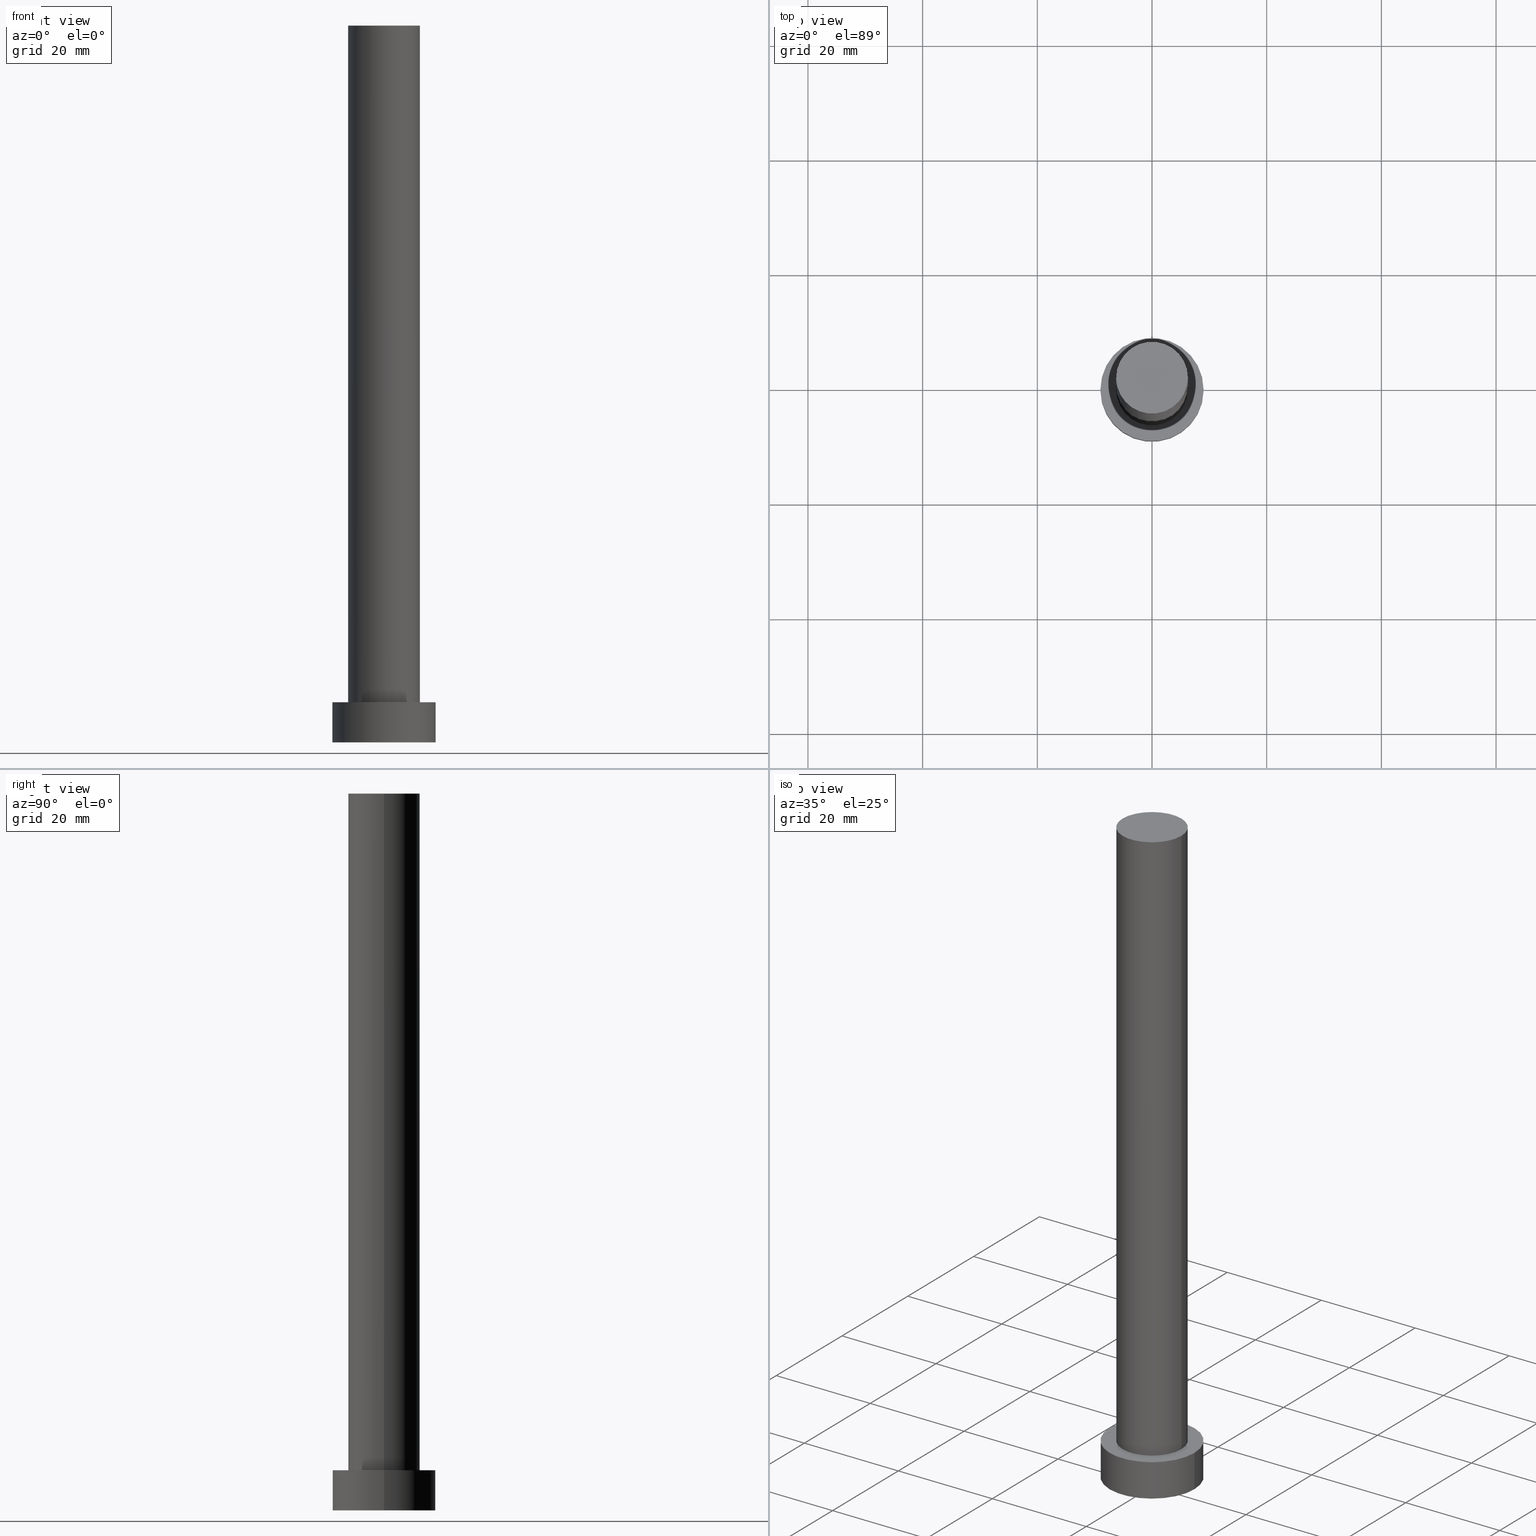
[diagram: canonical four-view strip — front | top / right | iso, engineering-drawing reading convention]
A machine part, canonical four-view strip (front | top / right | iso — engineering-drawing reading convention). The complete STEP part file that produces these views, byte-faithful:
ISO-10303-21;
HEADER;
FILE_DESCRIPTION (( 'STEP AP203' ),
    '1' );
FILE_NAME ('b05c.STEP',
    '2023-02-13T11:38:30',
    ( '' ),
    ( '' ),
    'SwSTEP 2.0',
    'SolidWorks 2019',
    '' );
FILE_SCHEMA (( 'CONFIG_CONTROL_DESIGN' ));
ENDSEC;

DATA;
#1 = PERSON_AND_ORGANIZATION ( #138, #77 ) ;
#2 = CYLINDRICAL_SURFACE ( 'NONE', #68, 6.250000000000000000 ) ;
#3 = DIRECTION ( 'NONE',  ( -0.000000000000000000, -0.000000000000000000, -1.000000000000000000 ) ) ;
#4 = ORIENTED_EDGE ( 'NONE', *, *, #132, .F. ) ;
#5 = EDGE_LOOP ( 'NONE', ( #204, #188, #47, #203 ) ) ;
#6 = ORIENTED_EDGE ( 'NONE', *, *, #98, .T. ) ;
#7 = VERTEX_POINT ( 'NONE', #169 ) ;
#8 = SECURITY_CLASSIFICATION_LEVEL ( 'unclassified' ) ;
#9 = ORIENTED_EDGE ( 'NONE', *, *, #155, .F. ) ;
#10 = DIRECTION ( 'NONE',  ( 0.000000000000000000, 0.000000000000000000, 1.000000000000000000 ) ) ;
#11 = MANIFOLD_SOLID_BREP ( 'P�idat vysunut�m3', #159 ) ;
#12 = FACE_OUTER_BOUND ( 'NONE', #5, .T. ) ;
#13 = DIRECTION ( 'NONE',  ( 1.000000000000000000, 0.000000000000000000, 0.000000000000000000 ) ) ;
#14 = CIRCLE ( 'NONE', #24, 6.250000000000000000 ) ;
#15 = APPROVAL ( #201, 'NEUR�EN�' ) ;
#16 = CARTESIAN_POINT ( 'NONE',  ( 0.000000000000000000, 0.000000000000000000, 0.000000000000000000 ) ) ;
#17 = DIRECTION ( 'NONE',  ( 1.000000000000000000, 0.000000000000000000, 0.000000000000000000 ) ) ;
#18 = UNCERTAINTY_MEASURE_WITH_UNIT (LENGTH_MEASURE( 1.000000000000000082E-05 ), #219, 'distance_accuracy_value', 'NONE');
#19 =( NAMED_UNIT ( * ) SI_UNIT ( $, .STERADIAN. ) SOLID_ANGLE_UNIT ( ) );
#20 = CALENDAR_DATE ( 2023, 13, 2 ) ;
#21 = PLANE ( 'NONE',  #133 ) ;
#22 = CC_DESIGN_APPROVAL ( #15, ( #195 ) ) ;
#23 = VERTEX_POINT ( 'NONE', #27 ) ;
#24 = AXIS2_PLACEMENT_3D ( 'NONE', #110, #92, #74 ) ;
#25 = APPROVAL_PERSON_ORGANIZATION ( #45, #221, #66 ) ;
#26 = EDGE_LOOP ( 'NONE', ( #145, #44 ) ) ;
#27 = CARTESIAN_POINT ( 'NONE',  ( -6.250000000000000000, 0.000000000000000000, 7.000000000000000000 ) ) ;
#28 = AXIS2_PLACEMENT_3D ( 'NONE', #173, #254, #234 ) ;
#29 = CARTESIAN_POINT ( 'NONE',  ( 9.000000000000000000, 1.102182119232617714E-15, 7.000000000000000000 ) ) ;
#30 = DIRECTION ( 'NONE',  ( -0.000000000000000000, -0.000000000000000000, -1.000000000000000000 ) ) ;
#31 = DIRECTION ( 'NONE',  ( 1.000000000000000000, 0.000000000000000000, -0.000000000000000000 ) ) ;
#32 = LINE ( 'NONE', #189, #50 ) ;
#33 = AXIS2_PLACEMENT_3D ( 'NONE', #88, #170, #70 ) ;
#34 = FACE_BOUND ( 'NONE', #225, .T. ) ;
#35 = ADVANCED_FACE ( 'NONE', ( #105 ), #149, .T. ) ;
#36 = DIRECTION ( 'NONE',  ( -1.000000000000000000, 0.000000000000000000, 0.000000000000000000 ) ) ;
#37 = DATE_AND_TIME ( #57, #212 ) ;
#38 = AXIS2_PLACEMENT_3D ( 'NONE', #171, #249, #215 ) ;
#39 = CC_DESIGN_APPROVAL ( #221, ( #119 ) ) ;
#40 = CALENDAR_DATE ( 2023, 13, 2 ) ;
#41 = AXIS2_PLACEMENT_3D ( 'NONE', #199, #140, #80 ) ;
#42 = EDGE_CURVE ( 'NONE', #7, #122, #32, .T. ) ;
#43 = CALENDAR_DATE ( 2023, 13, 2 ) ;
#44 = ORIENTED_EDGE ( 'NONE', *, *, #111, .T. ) ;
#45 = PERSON_AND_ORGANIZATION ( #138, #77 ) ;
#46 = VERTEX_POINT ( 'NONE', #73 ) ;
#47 = ORIENTED_EDGE ( 'NONE', *, *, #202, .T. ) ;
#48 = DIRECTION ( 'NONE',  ( -0.000000000000000000, -0.000000000000000000, -1.000000000000000000 ) ) ;
#49 = AXIS2_PLACEMENT_3D ( 'NONE', #251, #190, #148 ) ;
#50 = VECTOR ( 'NONE', #89, 1000.000000000000000 ) ;
#51 = DIRECTION ( 'NONE',  ( 1.000000000000000000, 0.000000000000000000, 0.000000000000000000 ) ) ;
#52 = EDGE_CURVE ( 'NONE', #147, #7, #139, .T. ) ;
#53 = LINE ( 'NONE', #75, #125 ) ;
#54 = CARTESIAN_POINT ( 'NONE',  ( -6.250000000000000000, 0.000000000000000000, 125.0000000000000000 ) ) ;
#55 = PERSON_AND_ORGANIZATION ( #138, #77 ) ;
#56 = ADVANCED_FACE ( 'NONE', ( #150 ), #211, .F. ) ;
#57 = CALENDAR_DATE ( 2023, 13, 2 ) ;
#58 = APPLICATION_PROTOCOL_DEFINITION ( 'international standard', 'config_control_design', 1994, #96 ) ;
#59 = CC_DESIGN_DATE_AND_TIME_ASSIGNMENT ( #120, #157, ( #117 ) ) ;
#60 = FACE_OUTER_BOUND ( 'NONE', #26, .T. ) ;
#61 = COORDINATED_UNIVERSAL_TIME_OFFSET ( 1, 0, .AHEAD. ) ;
#62 = EDGE_CURVE ( 'NONE', #184, #163, #206, .T. ) ;
#63 = AXIS2_PLACEMENT_3D ( 'NONE', #127, #174, #13 ) ;
#64 = LOCAL_TIME ( 12, 38, 30.00000000000000000, #156 ) ;
#65 = CALENDAR_DATE ( 2023, 13, 2 ) ;
#66 = APPROVAL_ROLE ( '' ) ;
#67 = ORIENTED_EDGE ( 'NONE', *, *, #207, .F. ) ;
#68 = AXIS2_PLACEMENT_3D ( 'NONE', #79, #3, #36 ) ;
#69 = EDGE_LOOP ( 'NONE', ( #228, #67 ) ) ;
#70 = DIRECTION ( 'NONE',  ( -1.000000000000000000, 0.000000000000000000, 0.000000000000000000 ) ) ;
#71 = CARTESIAN_POINT ( 'NONE',  ( 9.000000000000000000, 1.102182119232617714E-15, 0.000000000000000000 ) ) ;
#72 = CIRCLE ( 'NONE', #200, 9.000000000000000000 ) ;
#73 = CARTESIAN_POINT ( 'NONE',  ( 9.000000000000000000, 1.102182119232617714E-15, 7.000000000000000000 ) ) ;
#74 = DIRECTION ( 'NONE',  ( 1.000000000000000000, 0.000000000000000000, 0.000000000000000000 ) ) ;
#75 = CARTESIAN_POINT ( 'NONE',  ( -9.000000000000000000, 0.000000000000000000, 7.000000000000000000 ) ) ;
#76 =( NAMED_UNIT ( * ) PLANE_ANGLE_UNIT ( ) SI_UNIT ( $, .RADIAN. ) );
#77 = ORGANIZATION ( 'NEUR�EN�', 'NEUR�EN�', '' ) ;
#78 = MECHANICAL_CONTEXT ( 'NONE', #96, 'mechanical' ) ;
#79 = CARTESIAN_POINT ( 'NONE',  ( 0.000000000000000000, 0.000000000000000000, 125.0000000000000000 ) ) ;
#80 = DIRECTION ( 'NONE',  ( 1.000000000000000000, 0.000000000000000000, -0.000000000000000000 ) ) ;
#81 = COORDINATED_UNIVERSAL_TIME_OFFSET ( 1, 0, .AHEAD. ) ;
#82 = ORIENTED_EDGE ( 'NONE', *, *, #52, .F. ) ;
#83 = DATE_TIME_ROLE ( 'classification_date' ) ;
#84 = ORIENTED_EDGE ( 'NONE', *, *, #132, .T. ) ;
#85 = PERSON_AND_ORGANIZATION ( #138, #77 ) ;
#86 = EDGE_LOOP ( 'NONE', ( #121, #84 ) ) ;
#87 = AXIS2_PLACEMENT_3D ( 'NONE', #191, #90, #236 ) ;
#88 = CARTESIAN_POINT ( 'NONE',  ( 0.000000000000000000, 0.000000000000000000, 7.000000000000000000 ) ) ;
#89 = DIRECTION ( 'NONE',  ( -0.000000000000000000, -0.000000000000000000, -1.000000000000000000 ) ) ;
#90 = DIRECTION ( 'NONE',  ( 0.000000000000000000, 0.000000000000000000, 1.000000000000000000 ) ) ;
#91 = CIRCLE ( 'NONE', #63, 9.000000000000000000 ) ;
#92 = DIRECTION ( 'NONE',  ( 0.000000000000000000, 0.000000000000000000, 1.000000000000000000 ) ) ;
#93 = FACE_OUTER_BOUND ( 'NONE', #128, .T. ) ;
#94 = CIRCLE ( 'NONE', #49, 6.250000000000000000 ) ;
#95 = COORDINATED_UNIVERSAL_TIME_OFFSET ( 1, 0, .AHEAD. ) ;
#96 = APPLICATION_CONTEXT ( 'configuration controlled 3d designs of mechanical parts and assemblies' ) ;
#97 = PERSON_AND_ORGANIZATION_ROLE ( 'creator' ) ;
#98 = EDGE_CURVE ( 'NONE', #46, #163, #230, .T. ) ;
#99 = EDGE_LOOP ( 'NONE', ( #4, #124, #146, #9 ) ) ;
#100 = DATE_AND_TIME ( #20, #248 ) ;
#101 = APPROVAL_PERSON_ORGANIZATION ( #137, #15, #239 ) ;
#102 = ORIENTED_EDGE ( 'NONE', *, *, #151, .F. ) ;
#103 = CC_DESIGN_PERSON_AND_ORGANIZATION_ASSIGNMENT ( #1, #97, ( #117 ) ) ;
#104 = ORIENTED_EDGE ( 'NONE', *, *, #207, .T. ) ;
#105 = FACE_OUTER_BOUND ( 'NONE', #99, .T. ) ;
#106 = LOCAL_TIME ( 12, 38, 30.00000000000000000, #81 ) ;
#107 = ADVANCED_FACE ( 'NONE', ( #93 ), #129, .T. ) ;
#108 = DIRECTION ( 'NONE',  ( -1.000000000000000000, 0.000000000000000000, 0.000000000000000000 ) ) ;
#109 = CARTESIAN_POINT ( 'NONE',  ( -6.250000000000000000, 0.000000000000000000, 125.0000000000000000 ) ) ;
#110 = CARTESIAN_POINT ( 'NONE',  ( 0.000000000000000000, 0.000000000000000000, 125.0000000000000000 ) ) ;
#111 = EDGE_CURVE ( 'NONE', #46, #247, #91, .T. ) ;
#112 = APPLICATION_CONTEXT ( 'configuration controlled 3d designs of mechanical parts and assemblies' ) ;
#113 = AXIS2_PLACEMENT_3D ( 'NONE', #16, #238, #141 ) ;
#114 = LOCAL_TIME ( 12, 38, 30.00000000000000000, #61 ) ;
#115 = DIRECTION ( 'NONE',  ( 0.000000000000000000, 0.000000000000000000, 1.000000000000000000 ) ) ;
#116 = CARTESIAN_POINT ( 'NONE',  ( 0.000000000000000000, 0.000000000000000000, 7.000000000000000000 ) ) ;
#117 = PRODUCT_DEFINITION ( 'NEZN�M�', '', #195, #177 ) ;
#118 = DIRECTION ( 'NONE',  ( 1.000000000000000000, 0.000000000000000000, -0.000000000000000000 ) ) ;
#119 = SECURITY_CLASSIFICATION ( '', '', #8 ) ;
#120 = DATE_AND_TIME ( #40, #64 ) ;
#121 = ORIENTED_EDGE ( 'NONE', *, *, #52, .T. ) ;
#122 = VERTEX_POINT ( 'NONE', #152 ) ;
#123 = EDGE_CURVE ( 'NONE', #23, #122, #94, .T. ) ;
#124 = ORIENTED_EDGE ( 'NONE', *, *, #42, .T. ) ;
#125 = VECTOR ( 'NONE', #30, 1000.000000000000000 ) ;
#126 = SHAPE_DEFINITION_REPRESENTATION ( #167, #185 ) ;
#127 = CARTESIAN_POINT ( 'NONE',  ( 0.000000000000000000, 0.000000000000000000, 7.000000000000000000 ) ) ;
#128 = EDGE_LOOP ( 'NONE', ( #166, #6, #104, #229 ) ) ;
#129 = CYLINDRICAL_SURFACE ( 'NONE', #33, 9.000000000000000000 ) ;
#130 = DIRECTION ( 'NONE',  ( 1.000000000000000000, 0.000000000000000000, 0.000000000000000000 ) ) ;
#131 = CARTESIAN_POINT ( 'NONE',  ( 0.000000000000000000, 0.000000000000000000, 7.000000000000000000 ) ) ;
#132 = EDGE_CURVE ( 'NONE', #7, #147, #14, .T. ) ;
#133 = AXIS2_PLACEMENT_3D ( 'NONE', #116, #240, #118 ) ;
#134 = FACE_OUTER_BOUND ( 'NONE', #205, .T. ) ;
#135 = CARTESIAN_POINT ( 'NONE',  ( 0.000000000000000000, 0.000000000000000000, 0.000000000000000000 ) ) ;
#136 = ADVANCED_FACE ( 'NONE', ( #12 ), #153, .T. ) ;
#137 = PERSON_AND_ORGANIZATION ( #138, #77 ) ;
#138 = PERSON ( 'NEUR�EN�', 'NEUR�EN�', 'NEUR�EN�', ('NEUR�EN�'), ('NEUR�EN�'), ('NEUR�EN�') ) ;
#139 = CIRCLE ( 'NONE', #87, 6.250000000000000000 ) ;
#140 = DIRECTION ( 'NONE',  ( 0.000000000000000000, 0.000000000000000000, 1.000000000000000000 ) ) ;
#141 = DIRECTION ( 'NONE',  ( 1.000000000000000000, 0.000000000000000000, 0.000000000000000000 ) ) ;
#142 = PRODUCT ( 'b05c', 'b05c', '', ( #78 ) ) ;
#143 = CC_DESIGN_SECURITY_CLASSIFICATION ( #119, ( #195 ) ) ;
#144 = DATE_AND_TIME ( #65, #106 ) ;
#145 = ORIENTED_EDGE ( 'NONE', *, *, #183, .T. ) ;
#146 = ORIENTED_EDGE ( 'NONE', *, *, #151, .T. ) ;
#147 = VERTEX_POINT ( 'NONE', #109 ) ;
#148 = DIRECTION ( 'NONE',  ( 1.000000000000000000, 0.000000000000000000, 0.000000000000000000 ) ) ;
#149 = CYLINDRICAL_SURFACE ( 'NONE', #38, 6.250000000000000000 ) ;
#150 = FACE_OUTER_BOUND ( 'NONE', #69, .T. ) ;
#151 = EDGE_CURVE ( 'NONE', #122, #23, #246, .T. ) ;
#152 = CARTESIAN_POINT ( 'NONE',  ( 6.250000000000000000, 7.654042494670957606E-16, 7.000000000000000000 ) ) ;
#153 = CYLINDRICAL_SURFACE ( 'NONE', #180, 9.000000000000000000 ) ;
#154 = APPROVAL_ROLE ( '' ) ;
#155 = EDGE_CURVE ( 'NONE', #147, #23, #216, .T. ) ;
#156 = COORDINATED_UNIVERSAL_TIME_OFFSET ( 1, 0, .AHEAD. ) ;
#157 = DATE_TIME_ROLE ( 'creation_date' ) ;
#158 = CC_DESIGN_PERSON_AND_ORGANIZATION_ASSIGNMENT ( #242, #164, ( #195 ) ) ;
#159 = CLOSED_SHELL ( 'NONE', ( #35, #107, #136, #250, #56, #231, #243 ) ) ;
#160 = APPROVAL_STATUS ( 'not_yet_approved' ) ;
#161 = APPROVAL_DATE_TIME ( #100, #15 ) ;
#162 = AXIS2_PLACEMENT_3D ( 'NONE', #253, #10, #31 ) ;
#163 = VERTEX_POINT ( 'NONE', #71 ) ;
#164 = PERSON_AND_ORGANIZATION_ROLE ( 'creator' ) ;
#165 = ORIENTED_EDGE ( 'NONE', *, *, #123, .T. ) ;
#166 = ORIENTED_EDGE ( 'NONE', *, *, #111, .F. ) ;
#167 = PRODUCT_DEFINITION_SHAPE ( 'NONE', 'NONE',  #117 ) ;
#168 =( GEOMETRIC_REPRESENTATION_CONTEXT ( 3 ) GLOBAL_UNCERTAINTY_ASSIGNED_CONTEXT ( ( #18 ) ) GLOBAL_UNIT_ASSIGNED_CONTEXT ( ( #219, #76, #19 ) ) REPRESENTATION_CONTEXT ( 'NONE', 'WORKASPACE' ) );
#169 = CARTESIAN_POINT ( 'NONE',  ( 6.250000000000000000, 7.654042494670957606E-16, 125.0000000000000000 ) ) ;
#170 = DIRECTION ( 'NONE',  ( -0.000000000000000000, -0.000000000000000000, -1.000000000000000000 ) ) ;
#171 = CARTESIAN_POINT ( 'NONE',  ( 0.000000000000000000, 0.000000000000000000, 125.0000000000000000 ) ) ;
#172 = AXIS2_PLACEMENT_3D ( 'NONE', #252, #232, #130 ) ;
#173 = CARTESIAN_POINT ( 'NONE',  ( 0.000000000000000000, 0.000000000000000000, 0.000000000000000000 ) ) ;
#174 = DIRECTION ( 'NONE',  ( 0.000000000000000000, 0.000000000000000000, 1.000000000000000000 ) ) ;
#175 = PERSON_AND_ORGANIZATION_ROLE ( 'design_owner' ) ;
#176 = APPROVAL_PERSON_ORGANIZATION ( #255, #213, #154 ) ;
#177 = DESIGN_CONTEXT ( 'detailed design', #112, 'design' ) ;
#178 = APPLICATION_PROTOCOL_DEFINITION ( 'international standard', 'config_control_design', 1994, #112 ) ;
#179 = PLANE ( 'NONE',  #41 ) ;
#180 = AXIS2_PLACEMENT_3D ( 'NONE', #210, #48, #108 ) ;
#181 = DIRECTION ( 'NONE',  ( 0.000000000000000000, 0.000000000000000000, 1.000000000000000000 ) ) ;
#182 = PERSON_AND_ORGANIZATION ( #138, #77 ) ;
#183 = EDGE_CURVE ( 'NONE', #247, #46, #72, .T. ) ;
#184 = VERTEX_POINT ( 'NONE', #196 ) ;
#185 = ADVANCED_BREP_SHAPE_REPRESENTATION ( 'b05c', ( #11, #223 ), #168 ) ;
#186 = ORIENTED_EDGE ( 'NONE', *, *, #123, .F. ) ;
#187 = CC_DESIGN_PERSON_AND_ORGANIZATION_ASSIGNMENT ( #85, #226, ( #195 ) ) ;
#188 = ORIENTED_EDGE ( 'NONE', *, *, #183, .F. ) ;
#189 = CARTESIAN_POINT ( 'NONE',  ( 6.250000000000000000, 7.654042494670957606E-16, 125.0000000000000000 ) ) ;
#190 = DIRECTION ( 'NONE',  ( 0.000000000000000000, 0.000000000000000000, 1.000000000000000000 ) ) ;
#191 = CARTESIAN_POINT ( 'NONE',  ( 0.000000000000000000, 0.000000000000000000, 125.0000000000000000 ) ) ;
#192 = CC_DESIGN_PERSON_AND_ORGANIZATION_ASSIGNMENT ( #55, #175, ( #142 ) ) ;
#193 = ORIENTED_EDGE ( 'NONE', *, *, #155, .T. ) ;
#194 = VECTOR ( 'NONE', #235, 1000.000000000000000 ) ;
#195 = PRODUCT_DEFINITION_FORMATION_WITH_SPECIFIED_SOURCE ( 'LIBOVOLN�', '', #142, .NOT_KNOWN. ) ;
#196 = CARTESIAN_POINT ( 'NONE',  ( -9.000000000000000000, 0.000000000000000000, 0.000000000000000000 ) ) ;
#197 = FACE_OUTER_BOUND ( 'NONE', #86, .T. ) ;
#198 = CC_DESIGN_DATE_AND_TIME_ASSIGNMENT ( #222, #83, ( #119 ) ) ;
#199 = CARTESIAN_POINT ( 'NONE',  ( 0.000000000000000000, 0.000000000000000000, 125.0000000000000000 ) ) ;
#200 = AXIS2_PLACEMENT_3D ( 'NONE', #131, #115, #51 ) ;
#201 = APPROVAL_STATUS ( 'not_yet_approved' ) ;
#202 = EDGE_CURVE ( 'NONE', #247, #184, #53, .T. ) ;
#203 = ORIENTED_EDGE ( 'NONE', *, *, #62, .T. ) ;
#204 = ORIENTED_EDGE ( 'NONE', *, *, #98, .F. ) ;
#205 = EDGE_LOOP ( 'NONE', ( #245, #82, #193, #165 ) ) ;
#206 = CIRCLE ( 'NONE', #28, 9.000000000000000000 ) ;
#207 = EDGE_CURVE ( 'NONE', #163, #184, #227, .T. ) ;
#208 = APPROVAL_DATE_TIME ( #144, #221 ) ;
#209 = PRODUCT_RELATED_PRODUCT_CATEGORY ( 'detail', '', ( #142 ) ) ;
#210 = CARTESIAN_POINT ( 'NONE',  ( 0.000000000000000000, 0.000000000000000000, 7.000000000000000000 ) ) ;
#211 = PLANE ( 'NONE',  #162 ) ;
#212 = LOCAL_TIME ( 12, 38, 30.00000000000000000, #237 ) ;
#213 = APPROVAL ( #160, 'NEUR�EN�' ) ;
#214 = DIRECTION ( 'NONE',  ( -0.000000000000000000, -0.000000000000000000, -1.000000000000000000 ) ) ;
#215 = DIRECTION ( 'NONE',  ( -1.000000000000000000, 0.000000000000000000, 0.000000000000000000 ) ) ;
#216 = LINE ( 'NONE', #54, #194 ) ;
#217 = CARTESIAN_POINT ( 'NONE',  ( -9.000000000000000000, 0.000000000000000000, 7.000000000000000000 ) ) ;
#218 = APPROVAL_DATE_TIME ( #37, #213 ) ;
#219 =( LENGTH_UNIT ( ) NAMED_UNIT ( * ) SI_UNIT ( .MILLI., .METRE. ) );
#220 = VECTOR ( 'NONE', #214, 1000.000000000000000 ) ;
#221 = APPROVAL ( #244, 'NEUR�EN�' ) ;
#222 = DATE_AND_TIME ( #43, #114 ) ;
#223 = AXIS2_PLACEMENT_3D ( 'NONE', #135, #181, #17 ) ;
#224 = CC_DESIGN_PERSON_AND_ORGANIZATION_ASSIGNMENT ( #182, #241, ( #119 ) ) ;
#225 = EDGE_LOOP ( 'NONE', ( #186, #102 ) ) ;
#226 = PERSON_AND_ORGANIZATION_ROLE ( 'design_supplier' ) ;
#227 = CIRCLE ( 'NONE', #113, 9.000000000000000000 ) ;
#228 = ORIENTED_EDGE ( 'NONE', *, *, #62, .F. ) ;
#229 = ORIENTED_EDGE ( 'NONE', *, *, #202, .F. ) ;
#230 = LINE ( 'NONE', #29, #220 ) ;
#231 = ADVANCED_FACE ( 'NONE', ( #134 ), #2, .T. ) ;
#232 = DIRECTION ( 'NONE',  ( 0.000000000000000000, 0.000000000000000000, 1.000000000000000000 ) ) ;
#233 = CC_DESIGN_APPROVAL ( #213, ( #117 ) ) ;
#234 = DIRECTION ( 'NONE',  ( 1.000000000000000000, 0.000000000000000000, 0.000000000000000000 ) ) ;
#235 = DIRECTION ( 'NONE',  ( -0.000000000000000000, -0.000000000000000000, -1.000000000000000000 ) ) ;
#236 = DIRECTION ( 'NONE',  ( 1.000000000000000000, 0.000000000000000000, 0.000000000000000000 ) ) ;
#237 = COORDINATED_UNIVERSAL_TIME_OFFSET ( 1, 0, .AHEAD. ) ;
#238 = DIRECTION ( 'NONE',  ( 0.000000000000000000, 0.000000000000000000, 1.000000000000000000 ) ) ;
#239 = APPROVAL_ROLE ( '' ) ;
#240 = DIRECTION ( 'NONE',  ( 0.000000000000000000, 0.000000000000000000, 1.000000000000000000 ) ) ;
#241 = PERSON_AND_ORGANIZATION_ROLE ( 'classification_officer' ) ;
#242 = PERSON_AND_ORGANIZATION ( #138, #77 ) ;
#243 = ADVANCED_FACE ( 'NONE', ( #197 ), #179, .T. ) ;
#244 = APPROVAL_STATUS ( 'not_yet_approved' ) ;
#245 = ORIENTED_EDGE ( 'NONE', *, *, #42, .F. ) ;
#246 = CIRCLE ( 'NONE', #172, 6.250000000000000000 ) ;
#247 = VERTEX_POINT ( 'NONE', #217 ) ;
#248 = LOCAL_TIME ( 12, 38, 30.00000000000000000, #95 ) ;
#249 = DIRECTION ( 'NONE',  ( -0.000000000000000000, -0.000000000000000000, -1.000000000000000000 ) ) ;
#250 = ADVANCED_FACE ( 'NONE', ( #34, #60 ), #21, .T. ) ;
#251 = CARTESIAN_POINT ( 'NONE',  ( 0.000000000000000000, 0.000000000000000000, 7.000000000000000000 ) ) ;
#252 = CARTESIAN_POINT ( 'NONE',  ( 0.000000000000000000, 0.000000000000000000, 7.000000000000000000 ) ) ;
#253 = CARTESIAN_POINT ( 'NONE',  ( 0.000000000000000000, 0.000000000000000000, 0.000000000000000000 ) ) ;
#254 = DIRECTION ( 'NONE',  ( 0.000000000000000000, 0.000000000000000000, 1.000000000000000000 ) ) ;
#255 = PERSON_AND_ORGANIZATION ( #138, #77 ) ;
ENDSEC;
END-ISO-10303-21;
